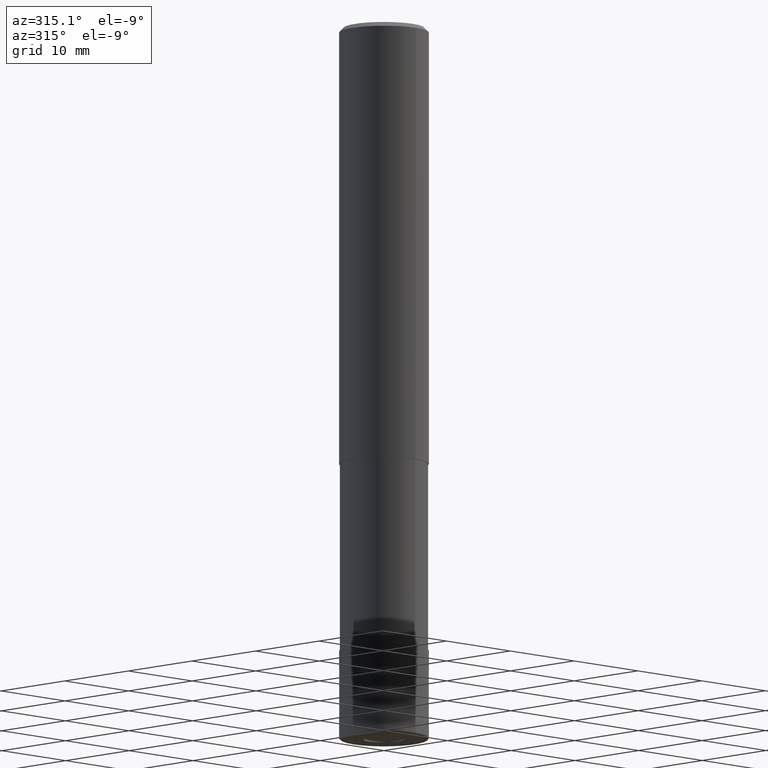
[diagram: clean part render]
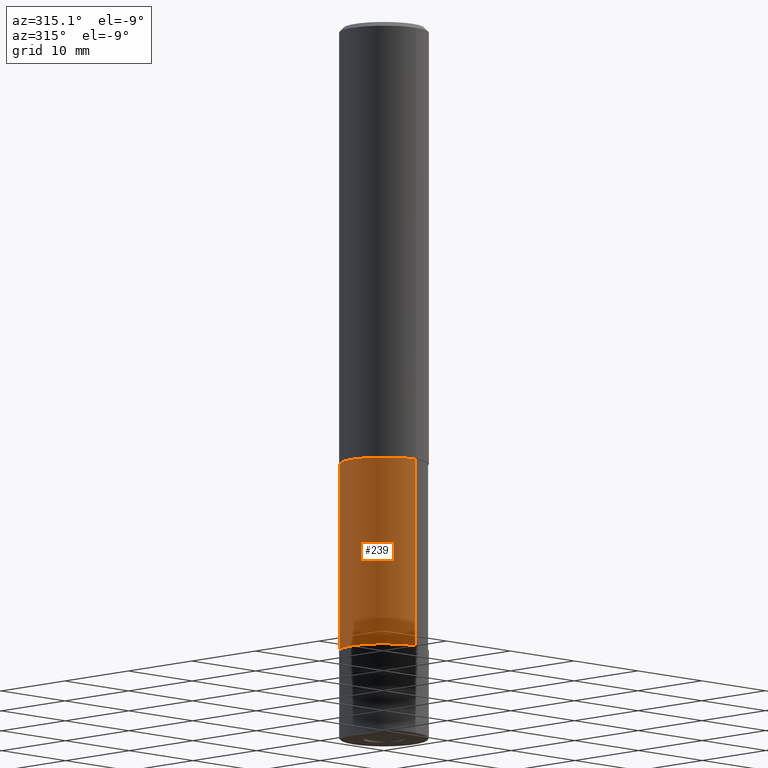
[diagram: same view with one face highlighted and labeled with its STEP entity id]
A machine part, auxiliary view. The second image highlights one B-rep face of the part: STEP entity #239.
In plain terms, the highlighted cylindrical surface (partial cylindrical patch) has radius 4.905 mm, axis along (-0, -0, 1).
Its self-contained STEP definition (entity closure, byte-faithful):
#167=VERTEX_POINT('',#366);
#181=VERTEX_POINT('',#382);
#197=EDGE_CURVE('',#181,#217,#400,.T.);
#203=EDGE_CURVE('',#167,#251,#407,.T.);
#217=VERTEX_POINT('',#425);
#219=EDGE_CURVE('',#167,#217,#427,.T.);
#239=ADVANCED_FACE('',(#447),#448,.T.);
#245=EDGE_CURVE('',#251,#181,#454,.T.);
#251=VERTEX_POINT('',#461);
#366=CARTESIAN_POINT('',(6.00663293518107E-016,-4.90495,-70.0));
#382=CARTESIAN_POINT('',(0.0,4.90495,-49.0));
#400=LINE('',#624,#625);
#407=LINE('',#633,#634);
#425=CARTESIAN_POINT('',(0.0,4.90495,-70.0));
#427=CIRCLE('',#657,4.90495);
#447=FACE_OUTER_BOUND('',#684,.T.);
#448=CYLINDRICAL_SURFACE('',#685,4.90495);
#454=CIRCLE('',#693,4.90495);
#461=CARTESIAN_POINT('',(6.00663293518107E-016,-4.90495,-49.0));
#624=CARTESIAN_POINT('',(-6.00663293518107E-016,4.90495,-59.5));
#625=VECTOR('',#874,1.0);
#633=CARTESIAN_POINT('',(6.00663293518107E-016,-4.90495,-59.5));
#634=VECTOR('',#883,1.0);
#657=AXIS2_PLACEMENT_3D('',#912,#913,#914);
#684=EDGE_LOOP('',(#936,#937,#938,#939));
#685=AXIS2_PLACEMENT_3D('',#940,#941,#942);
#693=AXIS2_PLACEMENT_3D('',#946,#947,#948);
#874=DIRECTION('',(0.0,0.0,-1.0));
#883=DIRECTION('',(-0.0,-0.0,1.0));
#912=CARTESIAN_POINT('',(0.0,0.0,-70.0));
#913=DIRECTION('',(0.0,0.0,-1.0));
#914=DIRECTION('',(0.0,1.0,0.0));
#936=ORIENTED_EDGE('',*,*,#197,.T.);
#937=ORIENTED_EDGE('',*,*,#219,.F.);
#938=ORIENTED_EDGE('',*,*,#203,.T.);
#939=ORIENTED_EDGE('',*,*,#245,.T.);
#940=CARTESIAN_POINT('',(0.0,0.0,-59.5));
#941=DIRECTION('',(-0.0,-0.0,1.0));
#942=DIRECTION('',(0.0,1.0,0.0));
#946=CARTESIAN_POINT('',(0.0,0.0,-49.0));
#947=DIRECTION('',(0.0,0.0,-1.0));
#948=DIRECTION('',(0.0,1.0,0.0));